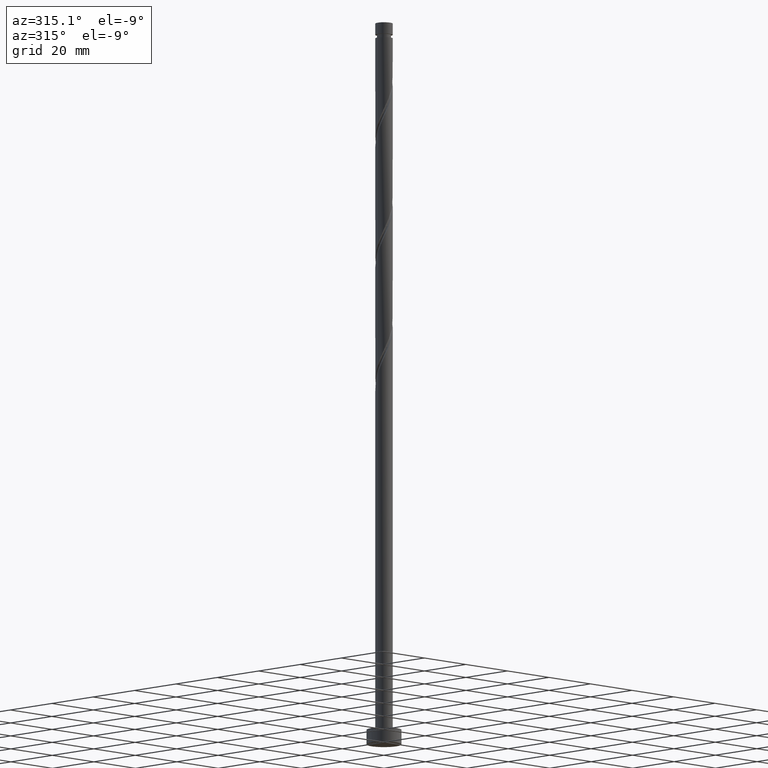
[diagram: clean part render]
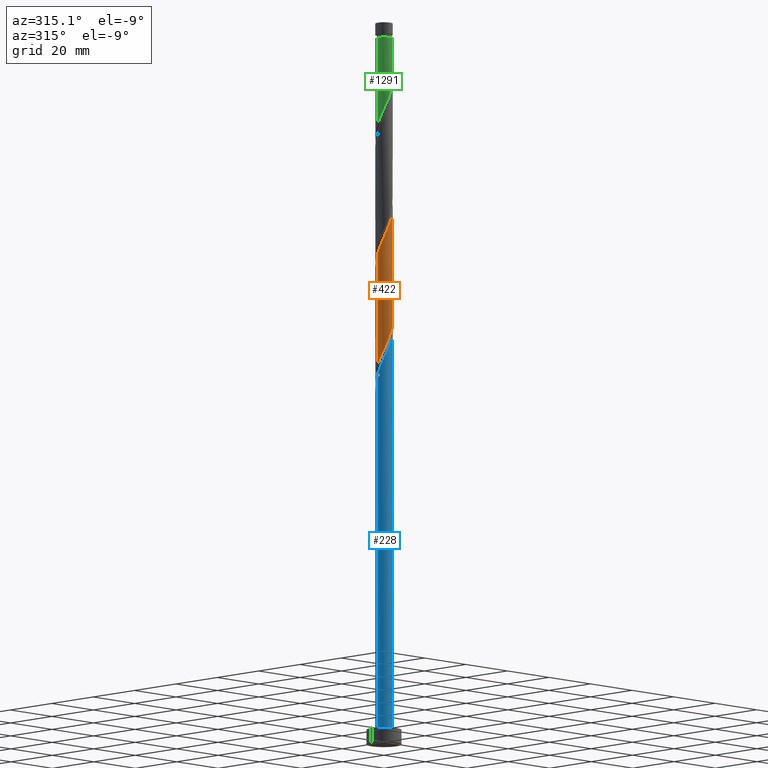
[diagram: same view with three faces highlighted in distinct colors, each labeled with its STEP entity id]
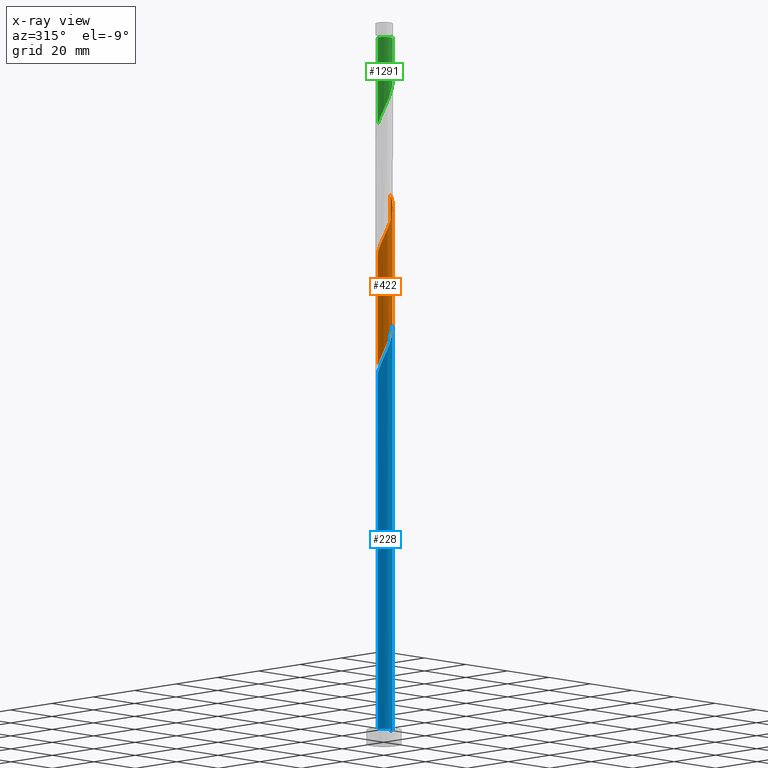
[diagram: x-ray of the same camera — body ghosted, the three highlighted faces saturated]
A machine part, auxiliary view with three faces highlighted in distinct colors.
The next image is the same camera in x-ray (body ghosted, the three faces saturated) — at least one of them is partly hidden behind the body in this view.
Their STEP definitions:

[orange] entity #422 — the highlighted cylindrical surface (edge-blend (fillet) strip) has radius 3 mm, axis along (-0, -0, -1).
#38 = CARTESIAN_POINT ( 'NONE',  ( -2.960644198141481276, -0.4843407189274794300, 131.7094068729852268 ) ) ;
#46 = CARTESIAN_POINT ( 'NONE',  ( 2.537251308848757603, -1.600736016882630341, 147.7350478986262203 ) ) ;
#56 = CARTESIAN_POINT ( 'NONE',  ( -3.000000000000000000, -0.2437693156111389869, 131.1731833323792955 ) ) ;
#63 = LINE ( 'NONE', #1486, #1101 ) ;
#93 = CARTESIAN_POINT ( 'NONE',  ( -2.961593349985113477, -0.6013771789905512088, 170.9722273858057235 ) ) ;
#141 = CARTESIAN_POINT ( 'NONE',  ( 2.990523579387029063, -0.2382618751084466246, 150.9401761037543963 ) ) ;
#171 = CARTESIAN_POINT ( 'NONE',  ( 0.1239431067051825625, -2.997438590913960255, 141.3247914883698115 ) ) ;
#201 = CARTESIAN_POINT ( 'NONE',  ( -2.615571287713475357, -1.513762372691142222, 134.1132530268313587 ) ) ;
#209 = CARTESIAN_POINT ( 'NONE',  ( -2.901834587494011242, -0.8438280090812977363, 132.5106889242672707 ) ) ;
#234 = CARTESIAN_POINT ( 'NONE',  ( -2.990523579387034392, -0.2382618751084437658, 170.1709453345236511 ) ) ;
#241 = CARTESIAN_POINT ( 'NONE',  ( -1.817997620638350131, -2.414036937049632847, 175.7799196934981296 ) ) ;
#250 = EDGE_CURVE ( 'NONE', #1316, #1669, #1055, .T. ) ;
#257 = VERTEX_POINT ( 'NONE', #1753 ) ;
#287 = EDGE_CURVE ( 'NONE', #257, #1669, #63, .T. ) ;
#367 = CARTESIAN_POINT ( 'NONE',  ( -3.000000000000005773, -0.1193193910103035466, 169.9084764255467803 ) ) ;
#418 = CARTESIAN_POINT ( 'NONE',  ( 3.000000000000001332, 4.142794973720391394E-15, 151.4668159283643547 ) ) ;
#422 = ADVANCED_FACE ( 'NONE', ( #886 ), #1467, .T. ) ;
#459 = CARTESIAN_POINT ( 'NONE',  ( 2.396435889809655162, -1.804742371096837328, 186.1965863601647015 ) ) ;
#467 = CARTESIAN_POINT ( 'NONE',  ( 0.2400118315905262201, -3.012488008736838196, 180.5876120011903936 ) ) ;
#468 = CARTESIAN_POINT ( 'NONE',  ( -3.000000000000000444, 3.021099583723894621E-15, 130.6334825950309266 ) ) ;
#475 = CARTESIAN_POINT ( 'NONE',  ( -0.5969924622639738443, -2.939999999999999503, 139.7222273858056951 ) ) ;
#485 = CARTESIAN_POINT ( 'NONE',  ( 2.615571287713478466, -1.513762372691147329, 186.9978684114468024 ) ) ;
#486 = CARTESIAN_POINT ( 'NONE',  ( -2.396435889809653830, -1.804742371096831999, 134.9145350781134027 ) ) ;
#494 = CARTESIAN_POINT ( 'NONE',  ( 1.817997620638344802, -2.414036937049630627, 145.3312017447801168 ) ) ;
#594 = CARTESIAN_POINT ( 'NONE',  ( 0.9539730929374202750, -2.867511991263173687, 182.1901761037545100 ) ) ;
#621 = CARTESIAN_POINT ( 'NONE',  ( -1.283232999305656596, -2.711699295551224242, 138.1196632832416071 ) ) ;
#625 = AXIS2_PLACEMENT_3D ( 'NONE', #1608, #894, #1475 ) ;
#630 = CARTESIAN_POINT ( 'NONE',  ( -1.187453060654103609, -2.778964719248857129, 177.3824837960622176 ) ) ;
#631 = CARTESIAN_POINT ( 'NONE',  ( 0.8376755528274971718, -2.880676946169971053, 142.9273555909338995 ) ) ;
#663 = CARTESIAN_POINT ( 'NONE',  ( -2.537251308848762932, -1.600736016882631452, 173.3760735396518271 ) ) ;
#664 = ORIENTED_EDGE ( 'NONE', *, *, #736, .F. ) ;
#736 = EDGE_CURVE ( 'NONE', #257, #1813, #1254, .T. ) ;
#765 = CARTESIAN_POINT ( 'NONE',  ( -2.177300491905830082, -2.095722369502523996, 135.7158171293954467 ) ) ;
#779 = CARTESIAN_POINT ( 'NONE',  ( 3.000000000000005329, 1.465681976262077287E-15, 190.4776388432471776 ) ) ;
#780 = CARTESIAN_POINT ( 'NONE',  ( 1.187453060654100057, -2.778964719248853132, 143.7286376422159719 ) ) ;
#809 = CARTESIAN_POINT ( 'NONE',  ( -2.846604600309533328, -0.9470175550097446049, 171.7735094370878244 ) ) ;
#824 = DIRECTION ( 'NONE',  ( -0.000000000000000000, -0.000000000000000000, -1.000000000000000000 ) ) ;
#839 = VECTOR ( 'NONE', #824, 1000.000000000000000 ) ;
#874 = ORIENTED_EDGE ( 'NONE', *, *, #287, .T. ) ;
#885 = CARTESIAN_POINT ( 'NONE',  ( -0.1239431067051852409, -2.997438590913965584, 179.7863299499082927 ) ) ;
#886 = FACE_OUTER_BOUND ( 'NONE', #1658, .T. ) ;
#894 = DIRECTION ( 'NONE',  ( -0.000000000000000000, -0.000000000000000000, -1.000000000000000000 ) ) ;
#904 = CARTESIAN_POINT ( 'NONE',  ( 1.283232999305656818, -2.711699295551230904, 182.9914581550364403 ) ) ;
#908 = ORIENTED_EDGE ( 'NONE', *, *, #250, .F. ) ;
#913 = CARTESIAN_POINT ( 'NONE',  ( -0.4878980450008968406, -2.982389173091094303, 178.9850478986263056 ) ) ;
#915 = CARTESIAN_POINT ( 'NONE',  ( 2.342886767063565578, -1.908814102736323459, 146.9337658473442332 ) ) ;
#949 = CARTESIAN_POINT ( 'NONE',  ( -2.342886767063572240, -1.908814102736324791, 174.1773555909339848 ) ) ;
#1047 = CARTESIAN_POINT ( 'NONE',  ( 3.000000000000006217, -0.2437693156111341297, 189.9379381058989225 ) ) ;
#1055 =( BOUNDED_CURVE ( )  B_SPLINE_CURVE ( 2, ( #418, #1429, #141, #1438, #1578, #1057, #46, #915, #1769, #494, #1357, #780, #631, #1332, #171, #1760, #475, #1342, #621, #1198, #1632, #765, #486, #201, #1616, #209, #38, #56, #468 ),
 .UNSPECIFIED., .F., .T. ) 
 B_SPLINE_CURVE_WITH_KNOTS ( ( 3, 2, 2, 2, 2, 2, 2, 2, 2, 2, 2, 2, 2, 2, 3 ),
 ( 0.8045271625973831053, 0.8076923076923077094, 0.8173076923076922906, 0.8269230769230768718, 0.8365384615384615641, 0.8461538461538461453, 0.8557692307692307265, 0.8653846153846154188, 0.8750000000000000000, 0.8846153846153845812, 0.8942307692307692735, 0.9038461538461538547, 0.9134615384615384359, 0.9230769230769231282, 0.9295271625973832164 ),
 .UNSPECIFIED. ) 
 CURVE ( )  GEOMETRIC_REPRESENTATION_ITEM ( )  RATIONAL_B_SPLINE_CURVE ( ( 0.9061636035682878454, 0.9069090390690763837, 0.9090909090909331525, 0.9024626128164365824, 0.9090909090909331525, 0.9024626128164365824, 0.9090909090909331525, 0.9024626128164365824, 0.9090909090909331525, 0.9024626128164365824, 0.9090909090909331525, 0.9024626128164365824, 0.9090909090909331525, 0.9024626128164365824, 0.9090909090909331525, 0.9024626128164365824, 0.9090909090909331525, 0.9024626128164365824, 0.9090909090909331525, 0.9024626128164365824, 0.9090909090909331525, 0.9024626128164365824, 0.9090909090909331525, 0.9024626128164365824, 0.9090909090909331525, 0.9024626128164365824, 0.9090909090909331525, 0.9046444828382932402, 0.9061636035682878454 ) ) 
 REPRESENTATION_ITEM ( '' )  );
#1057 = CARTESIAN_POINT ( 'NONE',  ( 2.731615850633949183, -1.292657931028937002, 148.5363299499082927 ) ) ;
#1096 = CARTESIAN_POINT ( 'NONE',  ( -2.080442193850960297, -2.161425519892978819, 174.9786376422160288 ) ) ;
#1101 = VECTOR ( 'NONE', #1205, 1000.000000000000000 ) ;
#1102 = CARTESIAN_POINT ( 'NONE',  ( 3.000000000000000444, 3.673940397442059868E-16, 249.0000000000000000 ) ) ;
#1103 = ORIENTED_EDGE ( 'NONE', *, *, #1482, .F. ) ;
#1116 = CARTESIAN_POINT ( 'NONE',  ( -1.502725340646227092, -2.596500828149244988, 176.5812017447800883 ) ) ;
#1186 = CARTESIAN_POINT ( 'NONE',  ( -3.000000000000000444, 3.021099583723894621E-15, 130.6334825950309266 ) ) ;
#1197 = CARTESIAN_POINT ( 'NONE',  ( 2.901834587494015683, -0.8438280090813018441, 188.6004325140108620 ) ) ;
#1198 = CARTESIAN_POINT ( 'NONE',  ( -1.612492905673893251, -2.555886599839283235, 137.3183812319595631 ) ) ;
#1205 = DIRECTION ( 'NONE',  ( -0.000000000000000000, -0.000000000000000000, -1.000000000000000000 ) ) ;
#1254 =( BOUNDED_CURVE ( )  B_SPLINE_CURVE ( 2, ( #1648, #367, #234, #93, #809, #1381, #663, #949, #1096, #241, #1116, #630, #1735, #913, #885, #467, #1456, #594, #904, #1474, #1759, #1348, #459, #485, #1331, #1197, #1493, #1047, #779 ),
 .UNSPECIFIED., .F., .T. ) 
 B_SPLINE_CURVE_WITH_KNOTS ( ( 3, 2, 2, 2, 2, 2, 2, 2, 2, 2, 2, 2, 2, 2, 3 ),
 ( 0.3045271625973832719, 0.3076923076923077094, 0.3173076923076922906, 0.3269230769230768718, 0.3365384615384615641, 0.3461538461538461453, 0.3557692307692307265, 0.3653846153846154188, 0.3750000000000000000, 0.3846153846153845812, 0.3942307692307692735, 0.4038461538461538547, 0.4134615384615384359, 0.4230769230769231282, 0.4295271625973833829 ),
 .UNSPECIFIED. ) 
 CURVE ( )  GEOMETRIC_REPRESENTATION_ITEM ( )  RATIONAL_B_SPLINE_CURVE ( ( 0.9061636035682940626, 0.9069090390690828229, 0.9090909090909394807, 0.9024626128164427996, 0.9090909090909394807, 0.9024626128164427996, 0.9090909090909394807, 0.9024626128164427996, 0.9090909090909394807, 0.9024626128164427996, 0.9090909090909394807, 0.9024626128164427996, 0.9090909090909394807, 0.9024626128164427996, 0.9090909090909394807, 0.9024626128164427996, 0.9090909090909394807, 0.9024626128164427996, 0.9090909090909394807, 0.9024626128164427996, 0.9090909090909394807, 0.9024626128164427996, 0.9090909090909394807, 0.9024626128164427996, 0.9090909090909394807, 0.9024626128164427996, 0.9090909090909394807, 0.9046444828382993464, 0.9061636035682941737 ) ) 
 REPRESENTATION_ITEM ( '' )  );
#1263 = CARTESIAN_POINT ( 'NONE',  ( 3.000000000000001332, 4.142794973720391394E-15, 151.4668159283642979 ) ) ;
#1316 = VERTEX_POINT ( 'NONE', #1263 ) ;
#1331 = CARTESIAN_POINT ( 'NONE',  ( 2.758702937603747074, -1.178795190886223532, 187.7991504627287895 ) ) ;
#1332 = CARTESIAN_POINT ( 'NONE',  ( 0.4878980450008935099, -2.982389173091089862, 142.1260735396518555 ) ) ;
#1342 = CARTESIAN_POINT ( 'NONE',  ( -0.9539730929374208301, -2.867511991263167026, 138.9209453345236511 ) ) ;
#1348 = CARTESIAN_POINT ( 'NONE',  ( 2.177300491905833191, -2.095722369502529325, 185.3953043088826291 ) ) ;
#1357 = CARTESIAN_POINT ( 'NONE',  ( 1.502725340646221985, -2.596500828149241435, 144.5299196934980444 ) ) ;
#1381 = CARTESIAN_POINT ( 'NONE',  ( -2.731615850633954956, -1.292657931028938778, 172.5747914883698400 ) ) ;
#1394 = LINE ( 'NONE', #1102, #839 ) ;
#1429 = CARTESIAN_POINT ( 'NONE',  ( 3.000000000000001332, -0.1193193910102999383, 151.2026450127313524 ) ) ;
#1438 = CARTESIAN_POINT ( 'NONE',  ( 2.961593349985106816, -0.6013771789905513199, 150.1388940524724092 ) ) ;
#1456 = CARTESIAN_POINT ( 'NONE',  ( 0.5969924622639738443, -2.940000000000006164, 181.3888940524724376 ) ) ;
#1467 = CYLINDRICAL_SURFACE ( 'NONE', #625, 3.000000000000000444 ) ;
#1474 = CARTESIAN_POINT ( 'NONE',  ( 1.612492905673894361, -2.555886599839288564, 183.7927402063185696 ) ) ;
#1475 = DIRECTION ( 'NONE',  ( -1.000000000000000000, 0.000000000000000000, 0.000000000000000000 ) ) ;
#1482 = EDGE_CURVE ( 'NONE', #1813, #1316, #1394, .T. ) ;
#1486 = CARTESIAN_POINT ( 'NONE',  ( -3.000000000000000444, 0.000000000000000000, 249.0000000000000000 ) ) ;
#1493 = CARTESIAN_POINT ( 'NONE',  ( 2.960644198141485717, -0.4843407189274821500, 189.4017145652929059 ) ) ;
#1559 = CARTESIAN_POINT ( 'NONE',  ( 3.000000000000005329, 1.465681976262077287E-15, 190.4776388432471776 ) ) ;
#1578 = CARTESIAN_POINT ( 'NONE',  ( 2.846604600309527555, -0.9470175550097453820, 149.3376120011903652 ) ) ;
#1608 = CARTESIAN_POINT ( 'NONE',  ( 0.000000000000000000, 0.000000000000000000, 249.0000000000000000 ) ) ;
#1616 = CARTESIAN_POINT ( 'NONE',  ( -2.758702937603743521, -1.178795190886219757, 133.3119709755493147 ) ) ;
#1632 = CARTESIAN_POINT ( 'NONE',  ( -1.894896698789862111, -2.325804484670903172, 136.5170991806774623 ) ) ;
#1648 = CARTESIAN_POINT ( 'NONE',  ( -3.000000000000005773, -1.809668562527666872E-15, 169.6443055099138064 ) ) ;
#1658 = EDGE_LOOP ( 'NONE', ( #1103, #664, #874, #908 ) ) ;
#1669 = VERTEX_POINT ( 'NONE', #1186 ) ;
#1735 = CARTESIAN_POINT ( 'NONE',  ( -0.8376755528275000584, -2.880676946169975494, 178.1837658473442048 ) ) ;
#1753 = CARTESIAN_POINT ( 'NONE',  ( -3.000000000000005773, -1.809668562527666872E-15, 169.6443055099138064 ) ) ;
#1759 = CARTESIAN_POINT ( 'NONE',  ( 1.894896698789863665, -2.325804484670907613, 184.5940222576005851 ) ) ;
#1760 = CARTESIAN_POINT ( 'NONE',  ( -0.2400118315905282462, -3.012488008736832423, 140.5235094370877391 ) ) ;
#1769 = CARTESIAN_POINT ( 'NONE',  ( 2.080442193850956301, -2.161425519892975711, 146.1324837960621039 ) ) ;
#1813 = VERTEX_POINT ( 'NONE', #1559 ) ;

[blue] entity #228 — the highlighted cylindrical surface (edge-blend (fillet) strip) has radius 3 mm, axis along (-0, -0, -1).
#1 = CARTESIAN_POINT ( 'NONE',  ( 2.177300491905833191, -2.095722369502529325, 143.7286376422160004 ) ) ;
#4 = VERTEX_POINT ( 'NONE', #1397 ) ;
#18 = DIRECTION ( 'NONE',  ( -0.000000000000000000, -0.000000000000000000, -1.000000000000000000 ) ) ;
#60 = VECTOR ( 'NONE', #279, 1000.000000000000000 ) ;
#116 = CARTESIAN_POINT ( 'NONE',  ( -1.187453060654103609, -2.778964719248857129, 135.7158171293954467 ) ) ;
#125 = CARTESIAN_POINT ( 'NONE',  ( 2.758702937603747074, -1.178795190886223532, 146.1324837960620755 ) ) ;
#145 = CARTESIAN_POINT ( 'NONE',  ( 2.396435889809655162, -1.804742371096837328, 144.5299196934981012 ) ) ;
#152 = FACE_OUTER_BOUND ( 'NONE', #956, .T. ) ;
#189 = CARTESIAN_POINT ( 'NONE',  ( -2.731615850633954956, -1.292657931028938778, 130.9081248217031828 ) ) ;
#200 = CARTESIAN_POINT ( 'NONE',  ( 0.000000000000000000, 0.000000000000000000, 5.000000000000000000 ) ) ;
#204 = ORIENTED_EDGE ( 'NONE', *, *, #211, .F. ) ;
#211 = EDGE_CURVE ( 'NONE', #1287, #4, #1269, .T. ) ;
#216 = LINE ( 'NONE', #787, #1446 ) ;
#228 = ADVANCED_FACE ( 'NONE', ( #152 ), #1709, .T. ) ;
#264 = CARTESIAN_POINT ( 'NONE',  ( 0.9539730929374202750, -2.867511991263173687, 140.5235094370877675 ) ) ;
#279 = DIRECTION ( 'NONE',  ( -0.000000000000000000, -0.000000000000000000, -1.000000000000000000 ) ) ;
#303 = CIRCLE ( 'NONE', #456, 3.000000000000000444 ) ;
#321 = CARTESIAN_POINT ( 'NONE',  ( -2.990523579387034392, -0.2382618751084437658, 128.5042786678570224 ) ) ;
#329 = CARTESIAN_POINT ( 'NONE',  ( -1.817997620638350131, -2.414036937049632847, 134.1132530268313872 ) ) ;
#345 = AXIS2_PLACEMENT_3D ( 'NONE', #1697, #18, #1718 ) ;
#411 = CARTESIAN_POINT ( 'NONE',  ( 3.000000000000005773, 1.465681976262077287E-15, 148.8109721765805489 ) ) ;
#438 = ORIENTED_EDGE ( 'NONE', *, *, #807, .T. ) ;
#456 = AXIS2_PLACEMENT_3D ( 'NONE', #200, #1177, #1601 ) ;
#465 = CARTESIAN_POINT ( 'NONE',  ( -3.000000000000006217, -1.018499414116810806E-14, 127.9776388432472203 ) ) ;
#473 = CARTESIAN_POINT ( 'NONE',  ( -2.080442193850960297, -2.161425519892978819, 133.3119709755493147 ) ) ;
#533 = CARTESIAN_POINT ( 'NONE',  ( 2.615571287713478466, -1.513762372691147329, 145.3312017447801168 ) ) ;
#618 = CARTESIAN_POINT ( 'NONE',  ( -3.000000000000006217, -1.018499414116810964E-14, 127.9776388432472203 ) ) ;
#689 = CARTESIAN_POINT ( 'NONE',  ( 3.000000000000000444, 3.673940397442059868E-16, 249.0000000000000000 ) ) ;
#695 = CARTESIAN_POINT ( 'NONE',  ( 1.283232999305656818, -2.711699295551230904, 141.3247914883698400 ) ) ;
#750 = CARTESIAN_POINT ( 'NONE',  ( -3.000000000000000444, 0.000000000000000000, 5.000000000000000000 ) ) ;
#762 = CARTESIAN_POINT ( 'NONE',  ( -2.537251308848762932, -1.600736016882631452, 131.7094068729852268 ) ) ;
#787 = CARTESIAN_POINT ( 'NONE',  ( -3.000000000000000444, 0.000000000000000000, 249.0000000000000000 ) ) ;
#807 = EDGE_CURVE ( 'NONE', #1704, #4, #303, .T. ) ;
#815 = CARTESIAN_POINT ( 'NONE',  ( 1.894896698789863665, -2.325804484670907613, 142.9273555909338995 ) ) ;
#914 = EDGE_CURVE ( 'NONE', #1764, #1704, #216, .T. ) ;
#954 = CARTESIAN_POINT ( 'NONE',  ( -0.4878980450008968406, -2.982389173091094303, 137.3183812319595631 ) ) ;
#956 = EDGE_LOOP ( 'NONE', ( #204, #1424, #1390, #438 ) ) ;
#967 = CARTESIAN_POINT ( 'NONE',  ( 2.960644198141485717, -0.4843407189274821500, 147.7350478986263340 ) ) ;
#986 = CARTESIAN_POINT ( 'NONE',  ( -0.8376755528275000584, -2.880676946169975494, 136.5170991806774907 ) ) ;
#1121 = CARTESIAN_POINT ( 'NONE',  ( -0.1239431067051852409, -2.997438590913965584, 138.1196632832416640 ) ) ;
#1177 = DIRECTION ( 'NONE',  ( 0.000000000000000000, 0.000000000000000000, 1.000000000000000000 ) ) ;
#1195 = CARTESIAN_POINT ( 'NONE',  ( -2.961593349985113477, -0.6013771789905512088, 129.3055607191390664 ) ) ;
#1255 = CARTESIAN_POINT ( 'NONE',  ( 0.5969924622639738443, -2.940000000000006164, 139.7222273858056951 ) ) ;
#1269 = LINE ( 'NONE', #689, #60 ) ;
#1284 = CARTESIAN_POINT ( 'NONE',  ( 1.612492905673894361, -2.555886599839288564, 142.1260735396518839 ) ) ;
#1287 = VERTEX_POINT ( 'NONE', #1560 ) ;
#1340 = CARTESIAN_POINT ( 'NONE',  ( -2.342886767063572240, -1.908814102736324791, 132.5106889242672992 ) ) ;
#1363 = DIRECTION ( 'NONE',  ( -0.000000000000000000, -0.000000000000000000, -1.000000000000000000 ) ) ;
#1390 = ORIENTED_EDGE ( 'NONE', *, *, #914, .T. ) ;
#1397 = CARTESIAN_POINT ( 'NONE',  ( 3.000000000000000444, 3.673940397442059868E-16, 5.000000000000000000 ) ) ;
#1422 = CARTESIAN_POINT ( 'NONE',  ( 2.901834587494015683, -0.8438280090813018441, 146.9337658473442616 ) ) ;
#1424 = ORIENTED_EDGE ( 'NONE', *, *, #1799, .F. ) ;
#1446 = VECTOR ( 'NONE', #1363, 1000.000000000000000 ) ;
#1473 = CARTESIAN_POINT ( 'NONE',  ( -2.846604600309533328, -0.9470175550097446049, 130.1068427704211103 ) ) ;
#1504 =( BOUNDED_CURVE ( )  B_SPLINE_CURVE ( 2, ( #465, #1606, #321, #1195, #1473, #189, #762, #1340, #473, #329, #1572, #116, #986, #954, #1121, #1817, #1255, #264, #695, #1284, #815, #1, #145, #533, #125, #1422, #967, #1701, #411 ),
 .UNSPECIFIED., .F., .T. ) 
 B_SPLINE_CURVE_WITH_KNOTS ( ( 3, 2, 2, 2, 2, 2, 2, 2, 2, 2, 2, 2, 2, 2, 3 ),
 ( 0.05452716259738337595, 0.05769230769230770939, 0.06730769230769229061, 0.07692307692307687184, 0.08653846153846156408, 0.09615384615384614531, 0.1057692307692307265, 0.1153846153846154188, 0.1250000000000000000, 0.1346153846153845812, 0.1442307692307692735, 0.1538461538461538547, 0.1634615384615384359, 0.1730769230769231282, 0.1795271625973834106 ),
 .UNSPECIFIED. ) 
 CURVE ( )  GEOMETRIC_REPRESENTATION_ITEM ( )  RATIONAL_B_SPLINE_CURVE ( ( 0.9061636035682942847, 0.9069090390690829340, 0.9090909090909394807, 0.9024626128164427996, 0.9090909090909394807, 0.9024626128164427996, 0.9090909090909394807, 0.9024626128164427996, 0.9090909090909394807, 0.9024626128164427996, 0.9090909090909394807, 0.9024626128164427996, 0.9090909090909394807, 0.9024626128164427996, 0.9090909090909394807, 0.9024626128164427996, 0.9090909090909394807, 0.9024626128164427996, 0.9090909090909394807, 0.9024626128164427996, 0.9090909090909394807, 0.9024626128164427996, 0.9090909090909394807, 0.9024626128164427996, 0.9090909090909394807, 0.9024626128164427996, 0.9090909090909394807, 0.9046444828382993464, 0.9061636035682942847 ) ) 
 REPRESENTATION_ITEM ( '' )  );
#1560 = CARTESIAN_POINT ( 'NONE',  ( 3.000000000000005329, 1.465681976262077287E-15, 148.8109721765805489 ) ) ;
#1572 = CARTESIAN_POINT ( 'NONE',  ( -1.502725340646227092, -2.596500828149244988, 134.9145350781134027 ) ) ;
#1601 = DIRECTION ( 'NONE',  ( 1.000000000000000000, 0.000000000000000000, 0.000000000000000000 ) ) ;
#1606 = CARTESIAN_POINT ( 'NONE',  ( -3.000000000000006217, -0.1193193910103075017, 128.2418097588801515 ) ) ;
#1697 = CARTESIAN_POINT ( 'NONE',  ( 0.000000000000000000, 0.000000000000000000, 249.0000000000000000 ) ) ;
#1701 = CARTESIAN_POINT ( 'NONE',  ( 3.000000000000006217, -0.2437693156111331028, 148.2712714392322653 ) ) ;
#1704 = VERTEX_POINT ( 'NONE', #750 ) ;
#1709 = CYLINDRICAL_SURFACE ( 'NONE', #345, 3.000000000000000444 ) ;
#1718 = DIRECTION ( 'NONE',  ( -1.000000000000000000, 0.000000000000000000, 0.000000000000000000 ) ) ;
#1764 = VERTEX_POINT ( 'NONE', #618 ) ;
#1799 = EDGE_CURVE ( 'NONE', #1764, #1287, #1504, .T. ) ;
#1817 = CARTESIAN_POINT ( 'NONE',  ( 0.2400118315905262201, -3.012488008736838196, 138.9209453345236511 ) ) ;

[green] entity #1291 — the highlighted cylindrical surface (edge-blend (fillet) strip) has radius 3 mm, axis along (-0, -0, -1).
#8 = CARTESIAN_POINT ( 'NONE',  ( 3.000000000000000000, -1.465681976262087147E-15, 234.8001492616975554 ) ) ;
#14 = AXIS2_PLACEMENT_3D ( 'NONE', #1788, #941, #796 ) ;
#44 = VECTOR ( 'NONE', #1377, 1000.000000000000000 ) ;
#109 = ORIENTED_EDGE ( 'NONE', *, *, #643, .T. ) ;
#121 = CARTESIAN_POINT ( 'NONE',  ( 2.537251308848757603, -1.600736016882630341, 231.0683812319595347 ) ) ;
#151 = EDGE_CURVE ( 'NONE', #865, #496, #1242, .T. ) ;
#163 = CARTESIAN_POINT ( 'NONE',  ( -2.758702937603743521, -1.178795190886219757, 216.6453043088825723 ) ) ;
#176 = VECTOR ( 'NONE', #1229, 1000.000000000000000 ) ;
#239 = CARTESIAN_POINT ( 'NONE',  ( 3.000000000000000000, -1.465681976262087147E-15, 234.8001492616975554 ) ) ;
#296 = CARTESIAN_POINT ( 'NONE',  ( -0.9539730929374208301, -2.867511991263167026, 222.2542786678570224 ) ) ;
#358 = AXIS2_PLACEMENT_3D ( 'NONE', #705, #392, #555 ) ;
#392 = DIRECTION ( 'NONE',  ( -0.000000000000000000, -0.000000000000000000, -1.000000000000000000 ) ) ;
#407 = CARTESIAN_POINT ( 'NONE',  ( 1.817997620638344802, -2.414036937049630627, 228.6645350781133743 ) ) ;
#441 = CARTESIAN_POINT ( 'NONE',  ( 2.999999999999998668, -0.1193193910103173550, 234.5359783460646099 ) ) ;
#451 = CARTESIAN_POINT ( 'NONE',  ( -2.999999999999999556, 2.392950165325856779E-16, 213.9668159283642126 ) ) ;
#496 = VERTEX_POINT ( 'NONE', #660 ) ;
#534 = CYLINDRICAL_SURFACE ( 'NONE', #358, 3.000000000000000444 ) ;
#535 = EDGE_CURVE ( 'NONE', #1521, #865, #1638, .T. ) ;
#539 = EDGE_LOOP ( 'NONE', ( #672, #109, #1544, #1250 ) ) ;
#555 = DIRECTION ( 'NONE',  ( -1.000000000000000000, 0.000000000000000000, 0.000000000000000000 ) ) ;
#572 = CARTESIAN_POINT ( 'NONE',  ( -1.612492905673893251, -2.555886599839283235, 220.6517145652929059 ) ) ;
#595 = CARTESIAN_POINT ( 'NONE',  ( 2.961593349985106816, -0.6013771789905513199, 233.4722273858057235 ) ) ;
#643 = EDGE_CURVE ( 'NONE', #1521, #1124, #1208, .T. ) ;
#660 = CARTESIAN_POINT ( 'NONE',  ( -3.000000000000000000, 2.392950165325856779E-16, 213.9668159283642126 ) ) ;
#667 = FACE_OUTER_BOUND ( 'NONE', #539, .T. ) ;
#672 = ORIENTED_EDGE ( 'NONE', *, *, #535, .F. ) ;
#705 = CARTESIAN_POINT ( 'NONE',  ( 0.000000000000000000, 0.000000000000000000, 249.0000000000000000 ) ) ;
#711 = CARTESIAN_POINT ( 'NONE',  ( -2.396435889809653830, -1.804742371096831999, 218.2478684114467171 ) ) ;
#721 = CARTESIAN_POINT ( 'NONE',  ( -1.283232999305656596, -2.711699295551224242, 221.4529966165749215 ) ) ;
#732 = CARTESIAN_POINT ( 'NONE',  ( -2.960644198141481276, -0.4843407189274794300, 215.0427402063185127 ) ) ;
#796 = DIRECTION ( 'NONE',  ( -1.000000000000000000, 0.000000000000000000, 0.000000000000000000 ) ) ;
#799 = CARTESIAN_POINT ( 'NONE',  ( -3.000000000000000444, 0.000000000000000000, 249.0000000000000000 ) ) ;
#838 = CARTESIAN_POINT ( 'NONE',  ( 2.846604600309527555, -0.9470175550097453820, 232.6709453345236511 ) ) ;
#848 = CARTESIAN_POINT ( 'NONE',  ( 1.187453060654100057, -2.778964719248853132, 227.0619709755492863 ) ) ;
#865 = VERTEX_POINT ( 'NONE', #239 ) ;
#868 = CARTESIAN_POINT ( 'NONE',  ( -2.615571287713475357, -1.513762372691142222, 217.4465863601646731 ) ) ;
#898 = EDGE_CURVE ( 'NONE', #1124, #496, #1501, .T. ) ;
#941 = DIRECTION ( 'NONE',  ( -0.000000000000000000, -0.000000000000000000, -1.000000000000000000 ) ) ;
#982 = CARTESIAN_POINT ( 'NONE',  ( 1.502725340646221985, -2.596500828149241435, 227.8632530268313303 ) ) ;
#992 = CARTESIAN_POINT ( 'NONE',  ( 0.1239431067051825625, -2.997438590913960255, 224.6581248217031543 ) ) ;
#998 = CARTESIAN_POINT ( 'NONE',  ( 0.8376755528274971718, -2.880676946169971053, 226.2606889242672423 ) ) ;
#1013 = CARTESIAN_POINT ( 'NONE',  ( 2.999999999999983125, 3.673940397442049021E-16, 243.8888940524723807 ) ) ;
#1124 = VERTEX_POINT ( 'NONE', #1253 ) ;
#1128 = CARTESIAN_POINT ( 'NONE',  ( -2.901834587494011242, -0.8438280090812977363, 215.8440222576005567 ) ) ;
#1170 = CARTESIAN_POINT ( 'NONE',  ( -3.000000000000000000, -0.2437693156111382931, 214.5065166657126383 ) ) ;
#1208 = CIRCLE ( 'NONE', #14, 2.999999999999983125 ) ;
#1229 = DIRECTION ( 'NONE',  ( -0.000000000000000000, -0.000000000000000000, -1.000000000000000000 ) ) ;
#1242 =( BOUNDED_CURVE ( )  B_SPLINE_CURVE ( 2, ( #8, #441, #1407, #595, #838, #1568, #121, #1594, #1688, #407, #982, #848, #998, #1418, #992, #1584, #1292, #296, #721, #572, #1301, #1279, #711, #868, #163, #1128, #732, #1170, #451 ),
 .UNSPECIFIED., .F., .T. ) 
 B_SPLINE_CURVE_WITH_KNOTS ( ( 3, 2, 2, 2, 2, 2, 2, 2, 2, 2, 2, 2, 2, 2, 3 ),
 ( 0.3045271625973835494, 0.3076923076923077094, 0.3173076923076922906, 0.3269230769230769273, 0.3365384615384615641, 0.3461538461538461453, 0.3557692307692307820, 0.3653846153846153633, 0.3750000000000000000, 0.3846153846153846367, 0.3942307692307692180, 0.4038461538461538547, 0.4134615384615384359, 0.4230769230769230727, 0.4295271625973832164 ),
 .UNSPECIFIED. ) 
 CURVE ( )  GEOMETRIC_REPRESENTATION_ITEM ( )  RATIONAL_B_SPLINE_CURVE ( ( 0.9061636035682880674, 0.9069090390690768277, 0.9090909090909331525, 0.9024626128164365824, 0.9090909090909331525, 0.9024626128164365824, 0.9090909090909331525, 0.9024626128164365824, 0.9090909090909331525, 0.9024626128164365824, 0.9090909090909331525, 0.9024626128164365824, 0.9090909090909331525, 0.9024626128164365824, 0.9090909090909331525, 0.9024626128164365824, 0.9090909090909331525, 0.9024626128164365824, 0.9090909090909331525, 0.9024626128164365824, 0.9090909090909331525, 0.9024626128164365824, 0.9090909090909331525, 0.9024626128164365824, 0.9090909090909331525, 0.9024626128164365824, 0.9090909090909331525, 0.9046444828382931291, 0.9061636035682878454 ) ) 
 REPRESENTATION_ITEM ( '' )  );
#1250 = ORIENTED_EDGE ( 'NONE', *, *, #151, .F. ) ;
#1253 = CARTESIAN_POINT ( 'NONE',  ( -2.999999999999983125, 0.000000000000000000, 243.8888940524723807 ) ) ;
#1279 = CARTESIAN_POINT ( 'NONE',  ( -2.177300491905830082, -2.095722369502523996, 219.0491504627287611 ) ) ;
#1291 = ADVANCED_FACE ( 'NONE', ( #667 ), #534, .T. ) ;
#1292 = CARTESIAN_POINT ( 'NONE',  ( -0.5969924622639738443, -2.939999999999999503, 223.0555607191389527 ) ) ;
#1301 = CARTESIAN_POINT ( 'NONE',  ( -1.894896698789862111, -2.325804484670903172, 219.8504325140107767 ) ) ;
#1377 = DIRECTION ( 'NONE',  ( -0.000000000000000000, -0.000000000000000000, -1.000000000000000000 ) ) ;
#1407 = CARTESIAN_POINT ( 'NONE',  ( 2.990523579387029063, -0.2382618751084466246, 234.2735094370877391 ) ) ;
#1418 = CARTESIAN_POINT ( 'NONE',  ( 0.4878980450008935099, -2.982389173091089862, 225.4594068729851699 ) ) ;
#1501 = LINE ( 'NONE', #799, #44 ) ;
#1521 = VERTEX_POINT ( 'NONE', #1013 ) ;
#1544 = ORIENTED_EDGE ( 'NONE', *, *, #898, .T. ) ;
#1568 = CARTESIAN_POINT ( 'NONE',  ( 2.731615850633949183, -1.292657931028937002, 231.8696632832415787 ) ) ;
#1584 = CARTESIAN_POINT ( 'NONE',  ( -0.2400118315905282462, -3.012488008736832423, 223.8568427704211103 ) ) ;
#1594 = CARTESIAN_POINT ( 'NONE',  ( 2.342886767063565578, -1.908814102736323459, 230.2670991806774623 ) ) ;
#1638 = LINE ( 'NONE', #1796, #176 ) ;
#1688 = CARTESIAN_POINT ( 'NONE',  ( 2.080442193850956301, -2.161425519892975711, 229.4658171293953899 ) ) ;
#1788 = CARTESIAN_POINT ( 'NONE',  ( 0.000000000000000000, 0.000000000000000000, 243.8888940524723807 ) ) ;
#1796 = CARTESIAN_POINT ( 'NONE',  ( 3.000000000000000444, 3.673940397442059868E-16, 249.0000000000000000 ) ) ;